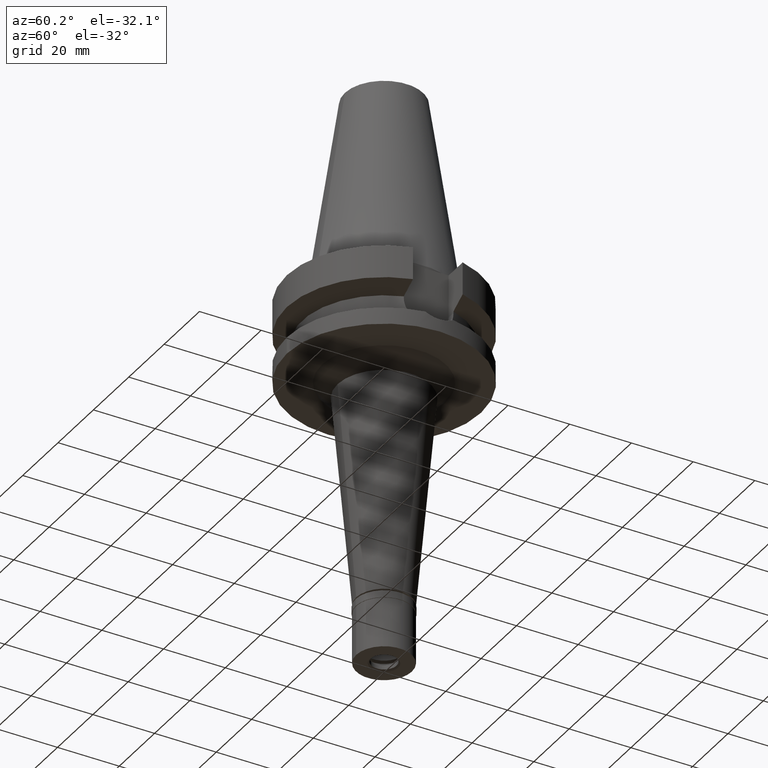
[diagram: clean part render]
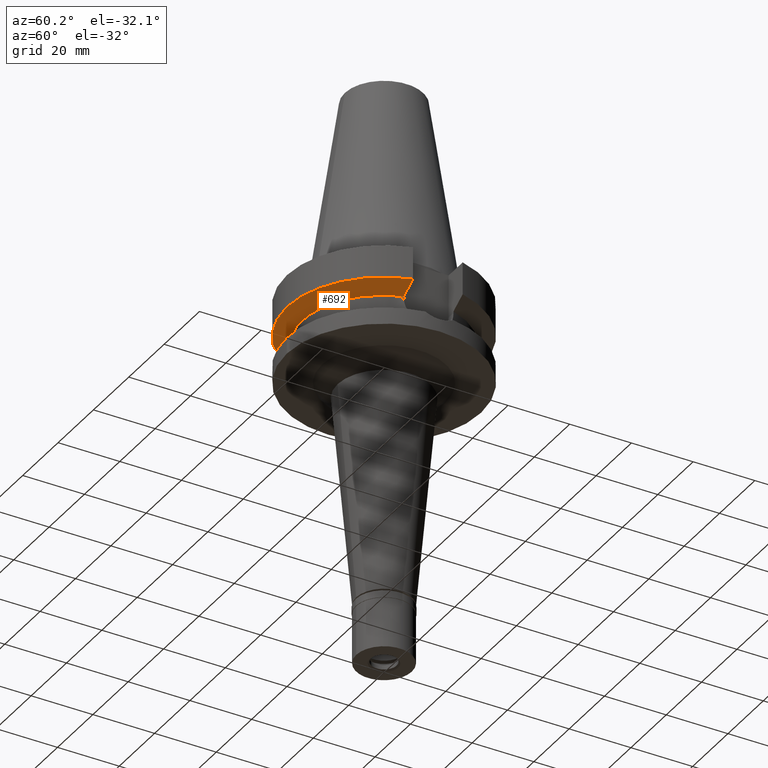
[diagram: same view with one face highlighted and labeled with its STEP entity id]
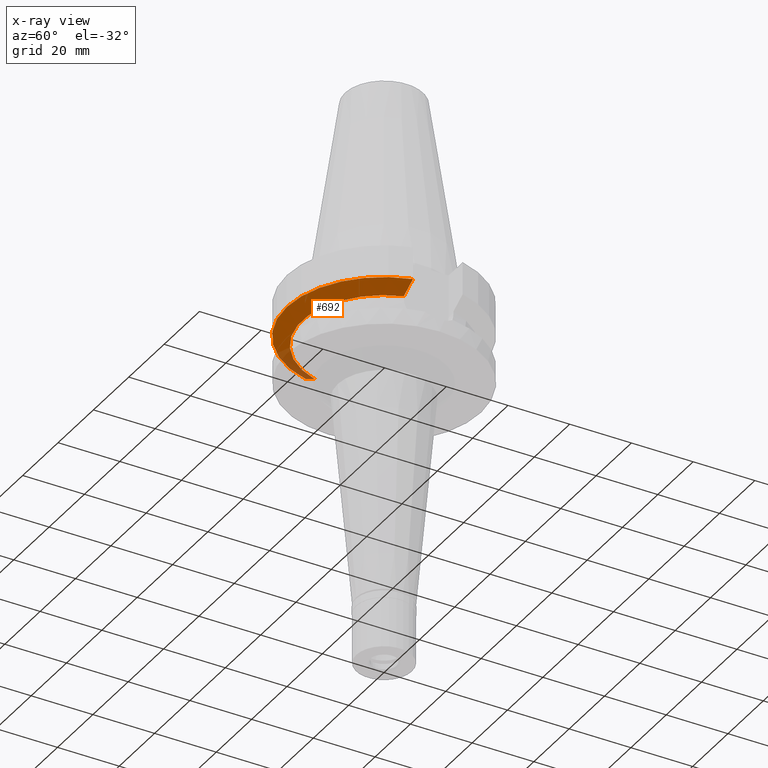
[diagram: x-ray of the same camera — body ghosted, the highlighted face saturated]
A machine part, auxiliary view. The second image highlights one B-rep face of the part: STEP entity #692.
The next image is the same camera in x-ray: the body ghosted, the highlighted face saturated — about 10% of this face is hidden behind the body in this view.
In plain terms, the highlighted conical surface has half-angle 60 deg.
Its self-contained STEP definition (entity closure, byte-faithful):
#33 = DIRECTION ( 'NONE',  ( 0.0000000000000000000, 1.000000000000000000, 0.0000000000000000000 ) ) ;
#49 = CONICAL_SURFACE ( 'NONE', #1727, 29.00000000000000000, 1.047197551196400456 ) ;
#110 = DIRECTION ( 'NONE',  ( 0.0000000000000000000, -1.000000000000000000, 0.0000000000000000000 ) ) ;
#204 = EDGE_CURVE ( 'NONE', #2596, #1570, #2432, .T. ) ;
#210 = B_SPLINE_CURVE_WITH_KNOTS ( 'NONE', 3,
 ( #1061, #2258, #1978, #2901 ),
 .UNSPECIFIED., .F., .F.,
 ( 4, 4 ),
 ( 0.0000000000000000000, 1.000000000000000000 ),
 .UNSPECIFIED. ) ;
#225 = EDGE_CURVE ( 'NONE', #399, #1502, #478, .T. ) ;
#280 = ORIENTED_EDGE ( 'NONE', *, *, #204, .F. ) ;
#320 = DIRECTION ( 'NONE',  ( 0.0000000000000000000, 0.0000000000000000000, -1.000000000000000000 ) ) ;
#399 = VERTEX_POINT ( 'NONE', #2690 ) ;
#403 = ORIENTED_EDGE ( 'NONE', *, *, #2214, .T. ) ;
#411 = ORIENTED_EDGE ( 'NONE', *, *, #959, .T. ) ;
#416 = CARTESIAN_POINT ( 'NONE',  ( -25.24772413126000359, -8.049995415628000472, -14.45229202918999967 ) ) ;
#478 = CIRCLE ( 'NONE', #2583, 26.50000000000000711 ) ;
#524 = DIRECTION ( 'NONE',  ( 0.9527442516822307583, -0.3037735849057093818, 0.0000000000000000000 ) ) ;
#675 = AXIS2_PLACEMENT_3D ( 'NONE', #1477, #2166, #110 ) ;
#692 = ADVANCED_FACE ( 'NONE', ( #1863 ), #49, .T. ) ;
#813 = CARTESIAN_POINT ( 'NONE',  ( -28.57292328670381210, -8.049998557013658740, -12.61549605737867807 ) ) ;
#860 = CARTESIAN_POINT ( 'NONE',  ( -26.83754615598483895, -8.049990821103214955, -13.57774888336211738 ) ) ;
#959 = EDGE_CURVE ( 'NONE', #399, #1570, #210, .T. ) ;
#1002 = ORIENTED_EDGE ( 'NONE', *, *, #225, .F. ) ;
#1061 = CARTESIAN_POINT ( 'NONE',  ( 25.24772266958000344, -8.050000000000000711, -14.45225699861000024 ) ) ;
#1175 = CARTESIAN_POINT ( 'NONE',  ( 30.45402272279000044, -8.049999999999000622, -11.56550565266999975 ) ) ;
#1215 = CARTESIAN_POINT ( 'NONE',  ( 0.0000000000000000000, 1.065333950388000029E-14, -14.45225699861000024 ) ) ;
#1413 = B_SPLINE_CURVE_WITH_KNOTS ( 'NONE', 3,
 ( #1521, #813, #860, #2693 ),
 .UNSPECIFIED., .F., .F.,
 ( 4, 4 ),
 ( 0.0000000000000000000, 1.000000000000000000 ),
 .UNSPECIFIED. ) ;
#1477 = CARTESIAN_POINT ( 'NONE',  ( 0.0000000000000000000, 1.065333950388000029E-14, -11.56550565266999975 ) ) ;
#1502 = VERTEX_POINT ( 'NONE', #416 ) ;
#1521 = CARTESIAN_POINT ( 'NONE',  ( -30.45402291362999847, -8.049999278036001016, -11.56551215524999954 ) ) ;
#1570 = VERTEX_POINT ( 'NONE', #1175 ) ;
#1727 = AXIS2_PLACEMENT_3D ( 'NONE', #2077, #2784, #33 ) ;
#1863 = FACE_OUTER_BOUND ( 'NONE', #1944, .T. ) ;
#1944 = EDGE_LOOP ( 'NONE', ( #403, #1002, #411, #280 ) ) ;
#1978 = CARTESIAN_POINT ( 'NONE',  ( 28.57294950325947980, -8.050008281344384287, -12.61547991083448039 ) ) ;
#2077 = CARTESIAN_POINT ( 'NONE',  ( 0.0000000000000000000, 1.065333950388000029E-14, -13.00888132564000088 ) ) ;
#2166 = DIRECTION ( 'NONE',  ( 0.0000000000000000000, 0.0000000000000000000, 1.000000000000000000 ) ) ;
#2214 = EDGE_CURVE ( 'NONE', #2596, #1502, #1413, .T. ) ;
#2258 = CARTESIAN_POINT ( 'NONE',  ( 26.83757728859750102, -8.050003176578989894, -13.57772965953603972 ) ) ;
#2432 = CIRCLE ( 'NONE', #675, 31.50000000000000000 ) ;
#2583 = AXIS2_PLACEMENT_3D ( 'NONE', #1215, #320, #524 ) ;
#2596 = VERTEX_POINT ( 'NONE', #2821 ) ;
#2690 = CARTESIAN_POINT ( 'NONE',  ( 25.24772266958000344, -8.050000000000000711, -14.45225699861000024 ) ) ;
#2693 = CARTESIAN_POINT ( 'NONE',  ( -25.24772413126000359, -8.049995415628000472, -14.45229202918999967 ) ) ;
#2784 = DIRECTION ( 'NONE',  ( 0.0000000000000000000, 0.0000000000000000000, 1.000000000000000000 ) ) ;
#2821 = CARTESIAN_POINT ( 'NONE',  ( -30.45402291362999847, -8.049999278036001016, -11.56551215524999954 ) ) ;
#2901 = CARTESIAN_POINT ( 'NONE',  ( 30.45402272279000044, -8.049999999999000622, -11.56550565266999975 ) ) ;